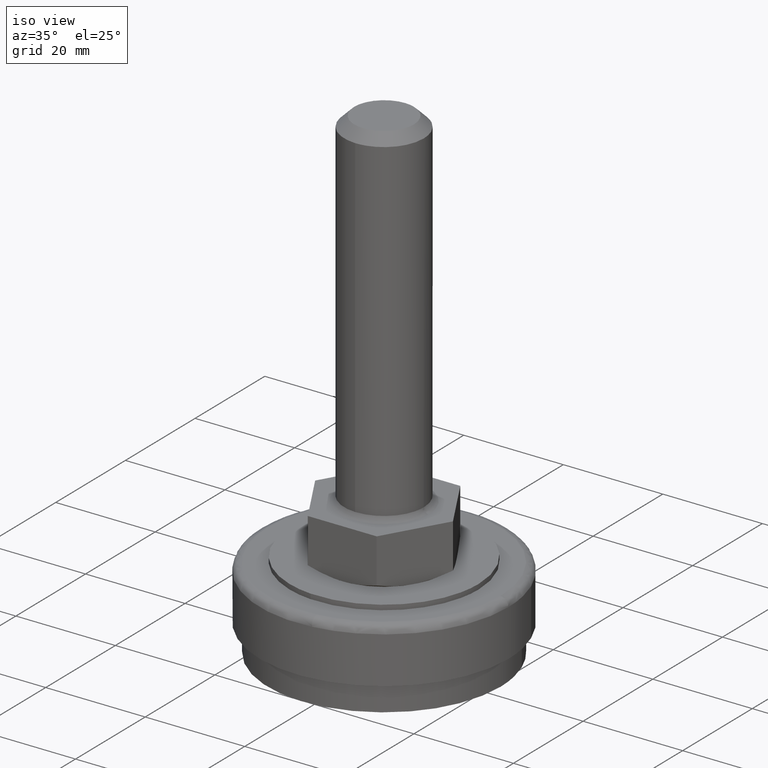
[diagram: clean part render]
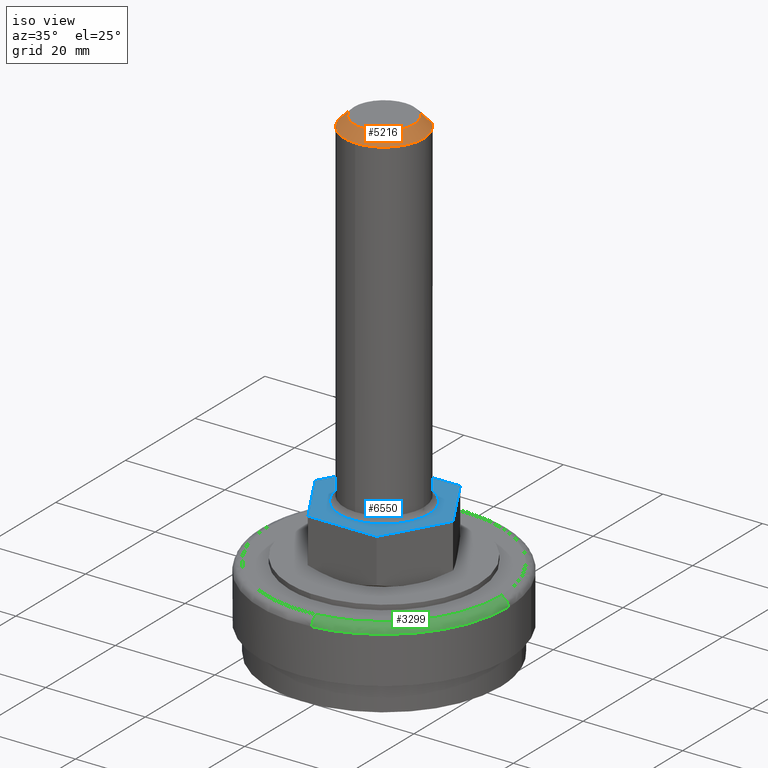
[diagram: same view with three faces highlighted in distinct colors, each labeled with its STEP entity id]
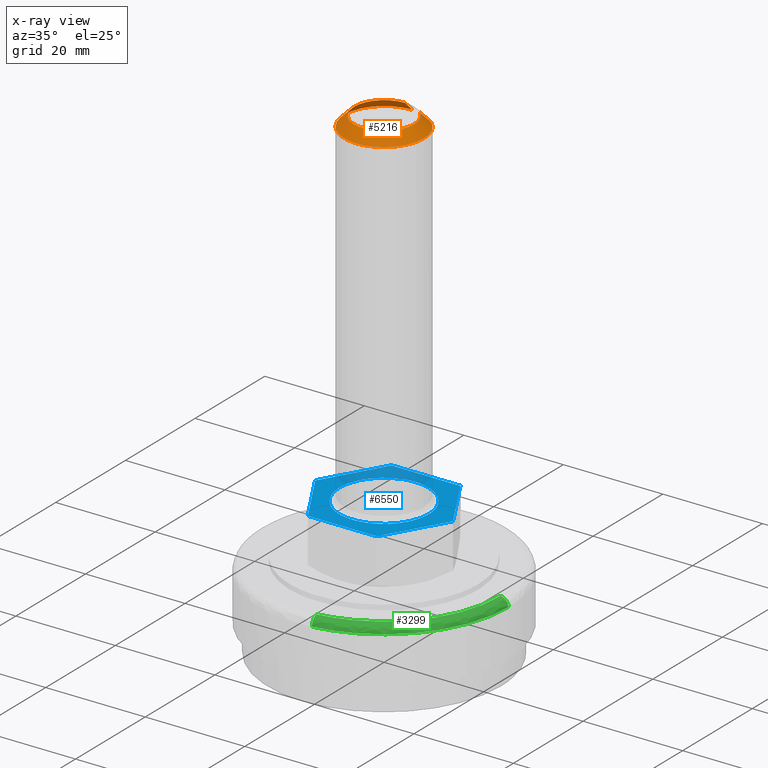
[diagram: x-ray of the same camera — body ghosted, the three highlighted faces saturated]
A machine part, iso view with three faces highlighted in distinct colors.
The next image is the same camera in x-ray (body ghosted, the three faces saturated) — at least one of them is partly hidden behind the body in this view.
Their STEP definitions:

[orange] entity #5216 — the highlighted face is a freeform B-spline surface patch.
#5046=CARTESIAN_POINT('',(4.103353494564371,4.308710955569673,97.550000000000011));
#5047=CARTESIAN_POINT('',(5.972295459134319,2.528844628833873,97.550000000000011));
#5048=CARTESIAN_POINT('',(5.949773442231799,-0.051922886215325,97.550000000000011));
#5049=CARTESIAN_POINT('',(5.897850556016476,-6.001696328447124,97.550000000000011));
#5050=CARTESIAN_POINT('',(-0.051922886215325,-5.949773442231799,97.550000000000011));
#5051=CARTESIAN_POINT('',(-6.001696328447124,-5.897850556016476,97.550000000000011));
#5052=CARTESIAN_POINT('',(-5.949773442231799,0.051922886215325,97.550000000000011));
#5053=CARTESIAN_POINT('',(-5.897850556016476,6.001696328447124,97.550000000000011));
#5054=CARTESIAN_POINT('',(0.051922886215325,5.949773442231799,97.550000000000011));
#5055=CARTESIAN_POINT('',(5.552457953464122,5.830337660677390,95.448750000000004));
#5056=CARTESIAN_POINT('',(8.081419128631158,3.421909297125850,95.448749999999990));
#5057=CARTESIAN_POINT('',(8.050943433070415,-0.070259518931283,95.448749999999990));
#5058=CARTESIAN_POINT('',(7.980683914139132,-8.121202952001699,95.448750000000004));
#5059=CARTESIAN_POINT('',(-0.070259518931283,-8.050943433070415,95.448749999999990));
#5060=CARTESIAN_POINT('',(-8.121202952001699,-7.980683914139132,95.448750000000004));
#5061=CARTESIAN_POINT('',(-8.050943433070415,0.070259518931283,95.448749999999990));
#5062=CARTESIAN_POINT('',(-7.980683914139132,8.121202952001699,95.448750000000004));
#5063=CARTESIAN_POINT('',(0.070259518931283,8.050943433070415,95.448749999999990));
#5071=(BOUNDED_SURFACE()B_SPLINE_SURFACE(2,1,((#5046,#5055),(#5047,#5056),(#5048,#5057),(#5049,#5058),(#5050,#5059),(#5051,#5060),(#5052,#5061),(#5053,#5062),(#5054,#5063)),.UNSPECIFIED.,.F.,.F.,.U.)B_SPLINE_SURFACE_WITH_KNOTS((3,2,2,2,3),(2,2),(0.0,6.936668843637279,20.276416619862822,33.616164396088351,46.955912172313887),(0.0,2.971616247936500),.UNSPECIFIED.)GEOMETRIC_REPRESENTATION_ITEM()RATIONAL_B_SPLINE_SURFACE(((0.853787705168325,0.853787705168325),(0.847695526217005,0.847695526217005),(1.0,1.0),(0.707106781186548,0.707106781186548),(1.0,1.0),(0.707106781186548,0.707106781186548),(1.0,1.0),(0.707106781186548,0.707106781186548),(1.0,1.0)))REPRESENTATION_ITEM('')SURFACE());
#5072=CARTESIAN_POINT('',(6.0,0.0,97.500000000000000));
#5073=VERTEX_POINT('',#5072);
#5074=CARTESIAN_POINT('',(4.137835456711434,4.344918610651103,97.499999999999943));
#5075=VERTEX_POINT('',#5074);
#5076=CARTESIAN_POINT('',(6.0,0.0,97.500000000000000));
#5077=CARTESIAN_POINT('',(5.999999999999999,2.571506686526789,97.500000000000000));
#5078=CARTESIAN_POINT('',(4.137835456711434,4.344918610651103,97.499999999999943));
#5086=(BOUNDED_CURVE()B_SPLINE_CURVE(2,(#5076,#5077,#5078),.UNSPECIFIED.,.F.,.U.)B_SPLINE_CURVE_WITH_KNOTS((3,3),(0.500000000000000,0.628682976149950),.UNSPECIFIED.)CURVE()GEOMETRIC_REPRESENTATION_ITEM()RATIONAL_B_SPLINE_CURVE((1.0,0.849238515635786,0.853680523245741))REPRESENTATION_ITEM(''));
#5087=EDGE_CURVE('',#5073,#5075,#5086,.T.);
#5088=ORIENTED_EDGE('',*,*,#5087,.F.);
#5089=CARTESIAN_POINT('',(-6.0,0.0,97.500000000000000));
#5090=VERTEX_POINT('',#5089);
#5091=CARTESIAN_POINT('',(-6.0,0.0,97.500000000000000));
#5092=CARTESIAN_POINT('',(-6.0,-6.0,97.500000000000000));
#5093=CARTESIAN_POINT('',(0.0,-6.0,97.500000000000000));
#5094=CARTESIAN_POINT('',(6.0,-6.0,97.500000000000000));
#5095=CARTESIAN_POINT('',(6.0,0.0,97.500000000000000));
#5103=(BOUNDED_CURVE()B_SPLINE_CURVE(2,(#5091,#5092,#5093,#5094,#5095),.UNSPECIFIED.,.F.,.U.)B_SPLINE_CURVE_WITH_KNOTS((3,2,3),(0.0,0.250000000000000,0.500000000000000),.UNSPECIFIED.)CURVE()GEOMETRIC_REPRESENTATION_ITEM()RATIONAL_B_SPLINE_CURVE((1.0,0.707106781186548,1.0,0.707106781186548,1.0))REPRESENTATION_ITEM(''));
#5104=EDGE_CURVE('',#5090,#5073,#5103,.T.);
#5105=ORIENTED_EDGE('',*,*,#5104,.F.);
#5106=CARTESIAN_POINT('',(0.052359213474642,5.999771538446815,97.499999999933976));
#5107=VERTEX_POINT('',#5106);
#5108=CARTESIAN_POINT('',(0.052359213474642,5.999771538446815,97.499999999933976));
#5109=CARTESIAN_POINT('',(0.026180105408060,6.0,97.500000000000000));
#5110=CARTESIAN_POINT('',(0.0,6.0,97.500000000000000));
#5111=CARTESIAN_POINT('',(-6.0,6.0,97.500000000000000));
#5112=CARTESIAN_POINT('',(-6.0,0.0,97.500000000000000));
#5120=(BOUNDED_CURVE()B_SPLINE_CURVE(2,(#5108,#5109,#5110,#5111,#5112),.UNSPECIFIED.,.F.,.U.)B_SPLINE_CURVE_WITH_KNOTS((3,2,3),(0.748460105636604,0.750000000000000,1.0),.UNSPECIFIED.)CURVE()GEOMETRIC_REPRESENTATION_ITEM()RATIONAL_B_SPLINE_CURVE((0.996414028034661,0.998195901533090,1.0,0.707106781186548,1.0))REPRESENTATION_ITEM(''));
#5121=EDGE_CURVE('',#5107,#5090,#5120,.T.);
#5122=ORIENTED_EDGE('',*,*,#5121,.F.);
#5123=CARTESIAN_POINT('',(0.069812284311303,7.999695384554780,95.499999999955747));
#5124=VERTEX_POINT('',#5123);
#5125=CARTESIAN_POINT('',(0.052359213474642,5.999771538446815,97.499999999933976));
#5126=CARTESIAN_POINT('',(0.069812284311303,7.999695384554780,95.499999999955747));
#5127=QUASI_UNIFORM_CURVE('',1,(#5125,#5126),.UNSPECIFIED.,.F.,.U.);
#5128=EDGE_CURVE('',#5107,#5124,#5127,.T.);
#5129=ORIENTED_EDGE('',*,*,#5128,.T.);
#5130=CARTESIAN_POINT('',(-8.0,0.0,95.500000000000000));
#5131=VERTEX_POINT('',#5130);
#5132=CARTESIAN_POINT('',(-8.0,0.0,95.500000000000000));
#5133=CARTESIAN_POINT('',(-8.0,8.0,95.500000000000000));
#5134=CARTESIAN_POINT('',(0.0,8.0,95.500000000000000));
#5135=CARTESIAN_POINT('',(0.034906806889531,8.0,95.500000000000000));
#5136=CARTESIAN_POINT('',(0.069812284311303,7.999695384554780,95.499999999955747));
#5144=(BOUNDED_CURVE()B_SPLINE_CURVE(2,(#5132,#5133,#5134,#5135,#5136),.UNSPECIFIED.,.F.,.U.)B_SPLINE_CURVE_WITH_KNOTS((3,2,3),(0.500000000000000,0.750000000000000,0.751539894349251),.UNSPECIFIED.)CURVE()GEOMETRIC_REPRESENTATION_ITEM()RATIONAL_B_SPLINE_CURVE((1.0,0.707106781186548,1.0,0.998195901549661,0.996414028067396))REPRESENTATION_ITEM(''));
#5145=EDGE_CURVE('',#5131,#5124,#5144,.T.);
#5146=ORIENTED_EDGE('',*,*,#5145,.F.);
#5147=CARTESIAN_POINT('',(-5.228296384928445,-6.055156225179699,95.500000000000000));
#5148=VERTEX_POINT('',#5147);
#5149=CARTESIAN_POINT('',(-5.228296384928444,-6.055156225179699,95.500000000000014));
#5150=CARTESIAN_POINT('',(-8.0,-3.661941673504641,95.499999999999986));
#5151=CARTESIAN_POINT('',(-8.0,0.0,95.500000000000000));
#5159=(BOUNDED_CURVE()B_SPLINE_CURVE(2,(#5149,#5150,#5151),.UNSPECIFIED.,.F.,.U.)B_SPLINE_CURVE_WITH_KNOTS((3,3),(0.363957593882705,0.500000000000000),.UNSPECIFIED.)CURVE()GEOMETRIC_REPRESENTATION_ITEM()RATIONAL_B_SPLINE_CURVE((0.854696233997828,0.840616407108715,1.0))REPRESENTATION_ITEM(''));
#5160=EDGE_CURVE('',#5148,#5131,#5159,.T.);
#5161=ORIENTED_EDGE('',*,*,#5160,.F.);
#5162=CARTESIAN_POINT('',(-0.209404390635684,-7.997258892961828,95.500000000000000));
#5163=VERTEX_POINT('',#5162);
#5164=CARTESIAN_POINT('',(-0.209404390635684,-7.997258892961828,95.500000000000000));
#5165=CARTESIAN_POINT('',(-3.065666342531497,-7.922469042905043,95.499999999999986));
#5166=CARTESIAN_POINT('',(-5.228296384928444,-6.055156225179699,95.500000000000014));
#5174=(BOUNDED_CURVE()B_SPLINE_CURVE(2,(#5164,#5165,#5166),.UNSPECIFIED.,.F.,.U.)B_SPLINE_CURVE_WITH_KNOTS((3,3),(0.254603061799192,0.363957593882705),.UNSPECIFIED.)CURVE()GEOMETRIC_REPRESENTATION_ITEM()RATIONAL_B_SPLINE_CURVE((0.989412943262184,0.866013976202037,0.854696233997828))REPRESENTATION_ITEM(''));
#5175=EDGE_CURVE('',#5163,#5148,#5174,.T.);
#5176=ORIENTED_EDGE('',*,*,#5175,.F.);
#5177=CARTESIAN_POINT('',(8.0,0.0,95.500000000000000));
#5178=VERTEX_POINT('',#5177);
#5179=CARTESIAN_POINT('',(8.0,0.0,95.500000000000000));
#5180=CARTESIAN_POINT('',(8.0,-8.0,95.500000000000000));
#5181=CARTESIAN_POINT('',(0.0,-8.0,95.500000000000000));
#5182=CARTESIAN_POINT('',(-0.104720135886738,-8.0,95.500000000000014));
#5183=CARTESIAN_POINT('',(-0.209404390635684,-7.997258892961828,95.500000000000000));
#5191=(BOUNDED_CURVE()B_SPLINE_CURVE(2,(#5179,#5180,#5181,#5182,#5183),.UNSPECIFIED.,.F.,.U.)B_SPLINE_CURVE_WITH_KNOTS((3,2,3),(0.0,0.250000000000000,0.254603061799192),.UNSPECIFIED.)CURVE()GEOMETRIC_REPRESENTATION_ITEM()RATIONAL_B_SPLINE_CURVE((1.0,0.707106781186548,1.0,0.994607177652950,0.989412943262184))REPRESENTATION_ITEM(''));
#5192=EDGE_CURVE('',#5178,#5163,#5191,.T.);
#5193=ORIENTED_EDGE('',*,*,#5192,.F.);
#5194=CARTESIAN_POINT('',(5.517113942279091,5.793224814204140,95.499999999999943));
#5195=VERTEX_POINT('',#5194);
#5196=CARTESIAN_POINT('',(5.517113942279091,5.793224814204140,95.499999999999943));
#5197=CARTESIAN_POINT('',(8.000000000000002,3.428675582040304,95.500000000000000));
#5198=CARTESIAN_POINT('',(8.0,0.0,95.500000000000000));
#5206=(BOUNDED_CURVE()B_SPLINE_CURVE(2,(#5196,#5197,#5198),.UNSPECIFIED.,.F.,.U.)B_SPLINE_CURVE_WITH_KNOTS((3,3),(0.871317023849904,1.0),.UNSPECIFIED.)CURVE()GEOMETRIC_REPRESENTATION_ITEM()RATIONAL_B_SPLINE_CURVE((0.853680523245751,0.849238515635615,1.0))REPRESENTATION_ITEM(''));
#5207=EDGE_CURVE('',#5195,#5178,#5206,.T.);
#5208=ORIENTED_EDGE('',*,*,#5207,.F.);
#5209=CARTESIAN_POINT('',(4.137835456711434,4.344918610651103,97.499999999999943));
#5210=CARTESIAN_POINT('',(5.517113942279091,5.793224814204140,95.499999999999943));
#5211=QUASI_UNIFORM_CURVE('',1,(#5209,#5210),.UNSPECIFIED.,.F.,.U.);
#5212=EDGE_CURVE('',#5075,#5195,#5211,.T.);
#5213=ORIENTED_EDGE('',*,*,#5212,.F.);
#5214=EDGE_LOOP('',(#5088,#5105,#5122,#5129,#5146,#5161,#5176,#5193,#5208,#5213));
#5215=FACE_OUTER_BOUND('',#5214,.T.);
#5216=ADVANCED_FACE('',(#5215),#5071,.T.);

[blue] entity #6550 — the highlighted face is a freeform B-spline surface patch.
#5599=CARTESIAN_POINT('',(-9.0,0.0,27.500000000000000));
#5600=VERTEX_POINT('',#5599);
#5601=CARTESIAN_POINT('',(0.627599264215905,8.978091064476018,27.500000000000000));
#5602=VERTEX_POINT('',#5601);
#5603=CARTESIAN_POINT('',(-9.0,0.0,27.500000000000000));
#5604=CARTESIAN_POINT('',(-9.0,9.0,27.499999999999993));
#5605=CARTESIAN_POINT('',(0.0,9.0,27.500000000000000));
#5606=CARTESIAN_POINT('',(0.314182042915423,8.999999999999998,27.500000000000004));
#5607=CARTESIAN_POINT('',(0.627599264215905,8.978091064476018,27.499999999999996));
#5615=(BOUNDED_CURVE()B_SPLINE_CURVE(2,(#5603,#5604,#5605,#5606,#5607),.UNSPECIFIED.,.F.,.U.)B_SPLINE_CURVE_WITH_KNOTS((3,2,3),(0.500000000000000,0.750000000000000,0.762166313466508),.UNSPECIFIED.)CURVE()GEOMETRIC_REPRESENTATION_ITEM()RATIONAL_B_SPLINE_CURVE((1.0,0.707106781186547,1.0,0.985746277150805,0.972879876383594))REPRESENTATION_ITEM(''));
#5616=EDGE_CURVE('',#5600,#5602,#5615,.T.);
#5618=CARTESIAN_POINT('',(8.999289397697183,-0.113094358939853,27.500000000000000));
#5619=VERTEX_POINT('',#5618);
#5620=CARTESIAN_POINT('',(8.999289397697183,-0.113094358939853,27.499999999999996));
#5621=CARTESIAN_POINT('',(8.887607369182808,-9.000000000000002,27.500000000000007));
#5622=CARTESIAN_POINT('',(0.0,-9.0,27.500000000000000));
#5623=CARTESIAN_POINT('',(-9.0,-9.0,27.499999999999993));
#5624=CARTESIAN_POINT('',(-9.0,0.0,27.500000000000000));
#5632=(BOUNDED_CURVE()B_SPLINE_CURVE(2,(#5620,#5621,#5622,#5623,#5624),.UNSPECIFIED.,.F.,.U.)B_SPLINE_CURVE_WITH_KNOTS((3,2,3),(0.002215704077936,0.250000000000000,0.500000000000000),.UNSPECIFIED.)CURVE()GEOMETRIC_REPRESENTATION_ITEM()RATIONAL_B_SPLINE_CURVE((0.994854295644786,0.709702639983846,1.0,0.707106781186547,1.0))REPRESENTATION_ITEM(''));
#5633=EDGE_CURVE('',#5619,#5600,#5632,.T.);
#5685=CARTESIAN_POINT('',(9.0,0.0,27.500000000000000));
#5686=VERTEX_POINT('',#5685);
#5687=CARTESIAN_POINT('',(0.627599264215905,8.978091064476018,27.500000000000004));
#5688=CARTESIAN_POINT('',(9.000000000000002,8.392831625319252,27.499999999999993));
#5689=CARTESIAN_POINT('',(9.0,0.0,27.500000000000000));
#5697=(BOUNDED_CURVE()B_SPLINE_CURVE(2,(#5687,#5688,#5689),.UNSPECIFIED.,.F.,.U.)B_SPLINE_CURVE_WITH_KNOTS((3,3),(0.762166313466507,1.0),.UNSPECIFIED.)CURVE()GEOMETRIC_REPRESENTATION_ITEM()RATIONAL_B_SPLINE_CURVE((0.972879876383594,0.721360504035743,1.0))REPRESENTATION_ITEM(''));
#5698=EDGE_CURVE('',#5602,#5686,#5697,.T.);
#5704=CARTESIAN_POINT('',(9.0,0.0,27.500000000000000));
#5705=CARTESIAN_POINT('',(8.999999999999998,-0.056549411918412,27.500000000000000));
#5706=CARTESIAN_POINT('',(8.999289397697183,-0.113094358939853,27.499999999999996));
#5714=(BOUNDED_CURVE()B_SPLINE_CURVE(2,(#5704,#5705,#5706),.UNSPECIFIED.,.F.,.U.)B_SPLINE_CURVE_WITH_KNOTS((3,3),(0.0,0.002215704077936),.UNSPECIFIED.)CURVE()GEOMETRIC_REPRESENTATION_ITEM()RATIONAL_B_SPLINE_CURVE((1.0,0.997404141202701,0.994854295644786))REPRESENTATION_ITEM(''));
#5715=EDGE_CURVE('',#5686,#5619,#5714,.T.);
#6495=CARTESIAN_POINT('',(-15.233615466367590,-13.198799953483350,27.500000000000000));
#6496=CARTESIAN_POINT('',(15.233615714024880,-13.198799953483350,27.500000000000000));
#6497=CARTESIAN_POINT('',(-15.233615466367590,13.198800597213509,27.500000000000000));
#6498=CARTESIAN_POINT('',(15.233615714024880,13.198800597213509,27.500000000000000));
#6499=B_SPLINE_SURFACE_WITH_KNOTS('',1,1,((#6495,#6497),(#6496,#6498)),.UNSPECIFIED.,.F.,.F.,.U.,(2,2),(2,2),(0.0,30.467231180392471),(0.0,26.397600550696851),.UNSPECIFIED.);
#6500=CARTESIAN_POINT('',(6.921797000000001,12.0,27.500000000000000));
#6501=VERTEX_POINT('',#6500);
#6502=CARTESIAN_POINT('',(-6.921796000000000,12.0,27.500000000000000));
#6503=VERTEX_POINT('',#6502);
#6504=CARTESIAN_POINT('',(6.921797000000001,12.0,27.500000000000000));
#6505=CARTESIAN_POINT('',(-6.921796000000000,12.0,27.500000000000000));
#6506=QUASI_UNIFORM_CURVE('',1,(#6504,#6505),.UNSPECIFIED.,.F.,.U.);
#6507=EDGE_CURVE('',#6501,#6503,#6506,.T.);
#6508=ORIENTED_EDGE('',*,*,#6507,.T.);
#6509=CARTESIAN_POINT('',(-13.850000000000000,0.0,27.500000000000000));
#6510=VERTEX_POINT('',#6509);
#6511=CARTESIAN_POINT('',(-6.921796000000000,12.0,27.500000000000000));
#6512=CARTESIAN_POINT('',(-13.850000000000000,0.0,27.500000000000000));
#6513=QUASI_UNIFORM_CURVE('',1,(#6511,#6512),.UNSPECIFIED.,.F.,.U.);
#6514=EDGE_CURVE('',#6503,#6510,#6513,.T.);
#6515=ORIENTED_EDGE('',*,*,#6514,.T.);
#6516=CARTESIAN_POINT('',(-6.921796000000000,-12.0,27.500000000000000));
#6517=VERTEX_POINT('',#6516);
#6518=CARTESIAN_POINT('',(-13.850000000000000,0.0,27.500000000000000));
#6519=CARTESIAN_POINT('',(-6.921796000000000,-12.0,27.500000000000000));
#6520=QUASI_UNIFORM_CURVE('',1,(#6518,#6519),.UNSPECIFIED.,.F.,.U.);
#6521=EDGE_CURVE('',#6510,#6517,#6520,.T.);
#6522=ORIENTED_EDGE('',*,*,#6521,.T.);
#6523=CARTESIAN_POINT('',(6.921797000000001,-12.0,27.500000000000000));
#6524=VERTEX_POINT('',#6523);
#6525=CARTESIAN_POINT('',(-6.921796000000000,-12.0,27.500000000000000));
#6526=CARTESIAN_POINT('',(6.921797000000001,-12.0,27.500000000000000));
#6527=QUASI_UNIFORM_CURVE('',1,(#6525,#6526),.UNSPECIFIED.,.F.,.U.);
#6528=EDGE_CURVE('',#6517,#6524,#6527,.T.);
#6529=ORIENTED_EDGE('',*,*,#6528,.T.);
#6530=CARTESIAN_POINT('',(13.850000000000000,0.0,27.500000000000000));
#6531=VERTEX_POINT('',#6530);
#6532=CARTESIAN_POINT('',(6.921797000000001,-12.0,27.500000000000000));
#6533=CARTESIAN_POINT('',(13.850000000000000,0.0,27.500000000000000));
#6534=QUASI_UNIFORM_CURVE('',1,(#6532,#6533),.UNSPECIFIED.,.F.,.U.);
#6535=EDGE_CURVE('',#6524,#6531,#6534,.T.);
#6536=ORIENTED_EDGE('',*,*,#6535,.T.);
#6537=CARTESIAN_POINT('',(13.850000000000000,0.0,27.500000000000000));
#6538=CARTESIAN_POINT('',(6.921797000000001,12.0,27.500000000000000));
#6539=QUASI_UNIFORM_CURVE('',1,(#6537,#6538),.UNSPECIFIED.,.F.,.U.);
#6540=EDGE_CURVE('',#6531,#6501,#6539,.T.);
#6541=ORIENTED_EDGE('',*,*,#6540,.T.);
#6542=EDGE_LOOP('',(#6508,#6515,#6522,#6529,#6536,#6541));
#6543=FACE_OUTER_BOUND('',#6542,.T.);
#6544=ORIENTED_EDGE('',*,*,#5715,.T.);
#6545=ORIENTED_EDGE('',*,*,#5633,.T.);
#6546=ORIENTED_EDGE('',*,*,#5616,.T.);
#6547=ORIENTED_EDGE('',*,*,#5698,.T.);
#6548=EDGE_LOOP('',(#6544,#6545,#6546,#6547));
#6549=FACE_BOUND('',#6548,.T.);
#6550=ADVANCED_FACE('',(#6543,#6549),#6499,.T.);

[green] entity #3299 — the highlighted face is a freeform B-spline surface patch.
#2611=CARTESIAN_POINT('',(24.999999999999989,0.0,14.900000000109790));
#2612=VERTEX_POINT('',#2611);
#2626=CARTESIAN_POINT('',(2.886605733208811,-24.832790969623328,14.900000000125839));
#2627=VERTEX_POINT('',#2626);
#2628=CARTESIAN_POINT('',(24.999999999999989,0.0,14.900000000109790));
#2629=CARTESIAN_POINT('',(25.000000000000004,-22.262292520615798,14.899999999999800));
#2630=CARTESIAN_POINT('',(2.886605733208811,-24.832790969623325,14.900000000125836));
#2638=(BOUNDED_CURVE()B_SPLINE_CURVE(2,(#2628,#2629,#2630),.UNSPECIFIED.,.F.,.U.)B_SPLINE_CURVE_WITH_KNOTS((3,3),(0.500000000000000,0.729999999999564),.UNSPECIFIED.)CURVE()GEOMETRIC_REPRESENTATION_ITEM()RATIONAL_B_SPLINE_CURVE((1.0,0.730538238692135,0.956886118189801))REPRESENTATION_ITEM(''));
#2639=EDGE_CURVE('',#2612,#2627,#2638,.T.);
#3196=CARTESIAN_POINT('',(2.701862966532961,-23.243492349329070,16.500000000000000));
#3197=VERTEX_POINT('',#3196);
#3198=CARTESIAN_POINT('',(2.701862966532961,-23.243492349329070,16.500000000000004));
#3199=CARTESIAN_POINT('',(2.886605733147768,-24.832790969376852,16.499999996442671));
#3200=CARTESIAN_POINT('',(2.886605733208811,-24.832790969623325,14.900000000125843));
#3208=(BOUNDED_CURVE()B_SPLINE_CURVE(2,(#3198,#3199,#3200),.UNSPECIFIED.,.F.,.U.)B_SPLINE_CURVE_WITH_KNOTS((3,3),(-1.736413118771105,-0.276558718177312),.UNSPECIFIED.)CURVE()GEOMETRIC_REPRESENTATION_ITEM()RATIONAL_B_SPLINE_CURVE((0.850203275509911,0.599621899630102,0.845789311842823))REPRESENTATION_ITEM(''));
#3209=EDGE_CURVE('',#3197,#2627,#3208,.T.);
#3228=CARTESIAN_POINT('',(23.400000000002571,0.0,16.500000000000000));
#3229=VERTEX_POINT('',#3228);
#3245=CARTESIAN_POINT('',(23.400000000002564,0.0,16.500000000000007));
#3246=CARTESIAN_POINT('',(24.999999999780211,0.0,16.499999999989729));
#3247=CARTESIAN_POINT('',(24.999999999999996,0.0,14.900000000109792));
#3255=(BOUNDED_CURVE()B_SPLINE_CURVE(2,(#3245,#3246,#3247),.UNSPECIFIED.,.F.,.U.)B_SPLINE_CURVE_WITH_KNOTS((3,3),(-1.736413121065526,-0.276558718156660),.UNSPECIFIED.)CURVE()GEOMETRIC_REPRESENTATION_ITEM()RATIONAL_B_SPLINE_CURVE((0.888510409060166,0.626638727264080,0.883897567088819))REPRESENTATION_ITEM(''));
#3256=EDGE_CURVE('',#3229,#2612,#3255,.T.);
#3264=CARTESIAN_POINT('',(23.289038497479257,1.425995E-015,16.496147720281030));
#3265=CARTESIAN_POINT('',(23.289038497479247,-20.738695502244468,16.496147720281026));
#3266=CARTESIAN_POINT('',(2.689050881880001,-23.133272995659983,16.496147720281030));
#3267=CARTESIAN_POINT('',(25.124383405377305,1.538374E-015,16.623737808614646));
#3268=CARTESIAN_POINT('',(25.124383405377309,-22.373054910882665,16.623737808614649));
#3269=CARTESIAN_POINT('',(2.900967567219818,-24.956342453860042,16.623737808614649));
#3270=CARTESIAN_POINT('',(24.996106057406767,1.530520E-015,14.788440807149783));
#3271=CARTESIAN_POINT('',(24.996106057406767,-22.258824997110821,14.788440807149779));
#3272=CARTESIAN_POINT('',(2.886156122096280,-24.828923071128429,14.788440807149794));
#3280=(BOUNDED_SURFACE()B_SPLINE_SURFACE(2,2,((#3264,#3267,#3270),(#3265,#3268,#3271),(#3266,#3269,#3272)),.UNSPECIFIED.,.F.,.F.,.U.)B_SPLINE_SURFACE_WITH_KNOTS((3,3),(3,3),(0.0,38.059919859372400),(0.0,2.915793829488939),.UNSPECIFIED.)GEOMETRIC_REPRESENTATION_ITEM()RATIONAL_B_SPLINE_SURFACE(((0.915966775246254,0.599412793168168,0.910893069716622),(0.669148754688445,0.437893966170300,0.665442218787187),(0.876475891957004,0.573569780848509,0.871620933567912)))REPRESENTATION_ITEM('')SURFACE());
#3281=ORIENTED_EDGE('',*,*,#2639,.F.);
#3282=ORIENTED_EDGE('',*,*,#3256,.F.);
#3283=CARTESIAN_POINT('',(23.400000000002571,0.0,16.500000000000000));
#3284=CARTESIAN_POINT('',(23.400000000000006,-20.837505799216814,16.500000000000004));
#3285=CARTESIAN_POINT('',(2.701862966532961,-23.243492349329074,16.499999999999996));
#3293=(BOUNDED_CURVE()B_SPLINE_CURVE(2,(#3283,#3284,#3285),.UNSPECIFIED.,.F.,.U.)B_SPLINE_CURVE_WITH_KNOTS((3,3),(0.500000000000000,0.729999999998922),.UNSPECIFIED.)CURVE()GEOMETRIC_REPRESENTATION_ITEM()RATIONAL_B_SPLINE_CURVE((1.0,0.730538238692886,0.956886118188538))REPRESENTATION_ITEM(''));
#3294=EDGE_CURVE('',#3229,#3197,#3293,.T.);
#3295=ORIENTED_EDGE('',*,*,#3294,.T.);
#3296=ORIENTED_EDGE('',*,*,#3209,.T.);
#3297=EDGE_LOOP('',(#3281,#3282,#3295,#3296));
#3298=FACE_OUTER_BOUND('',#3297,.T.);
#3299=ADVANCED_FACE('',(#3298),#3280,.T.);